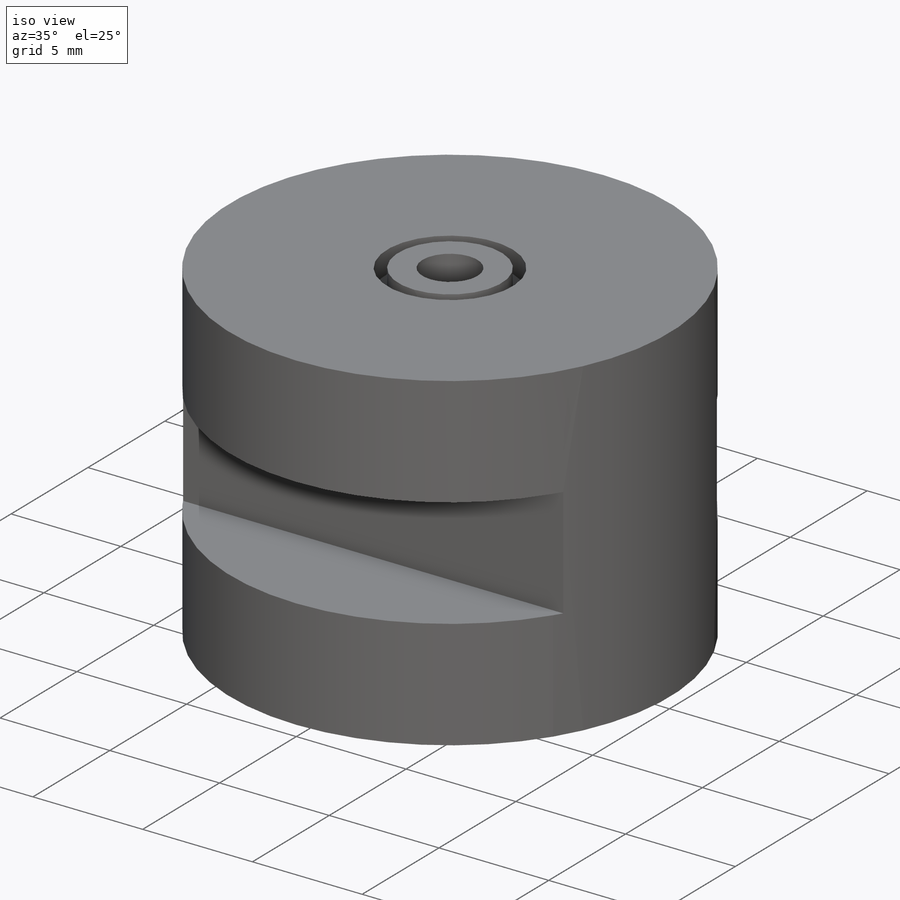
[diagram: iso view]
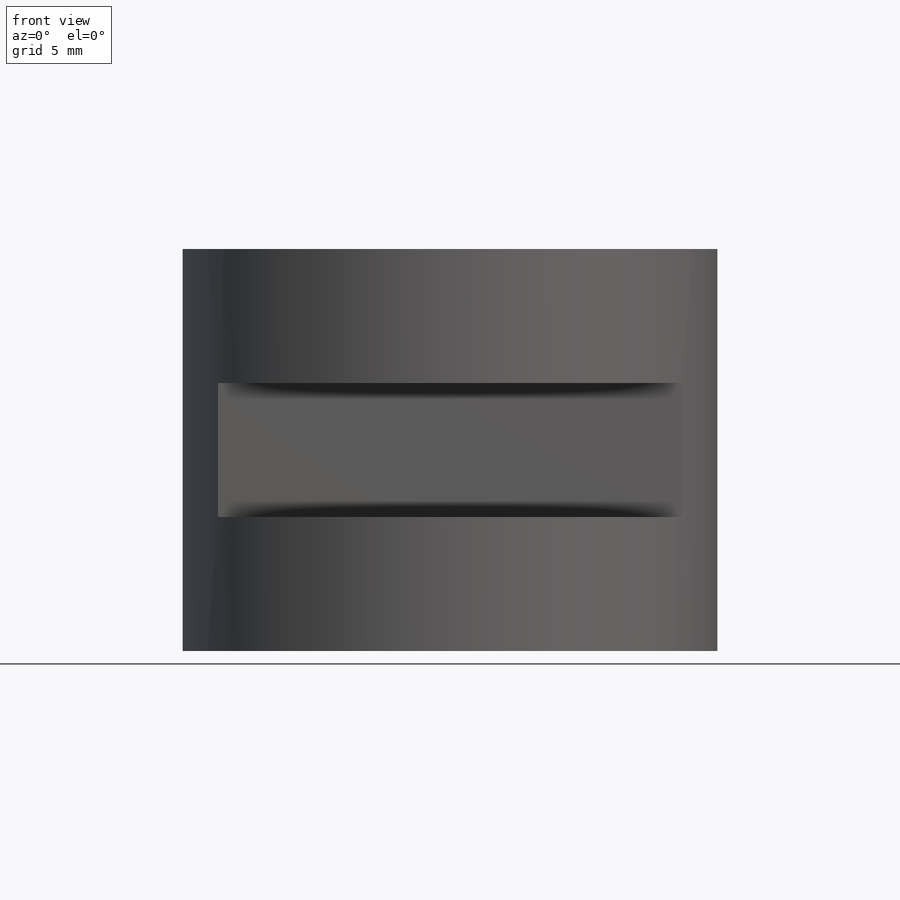
[diagram: front view]
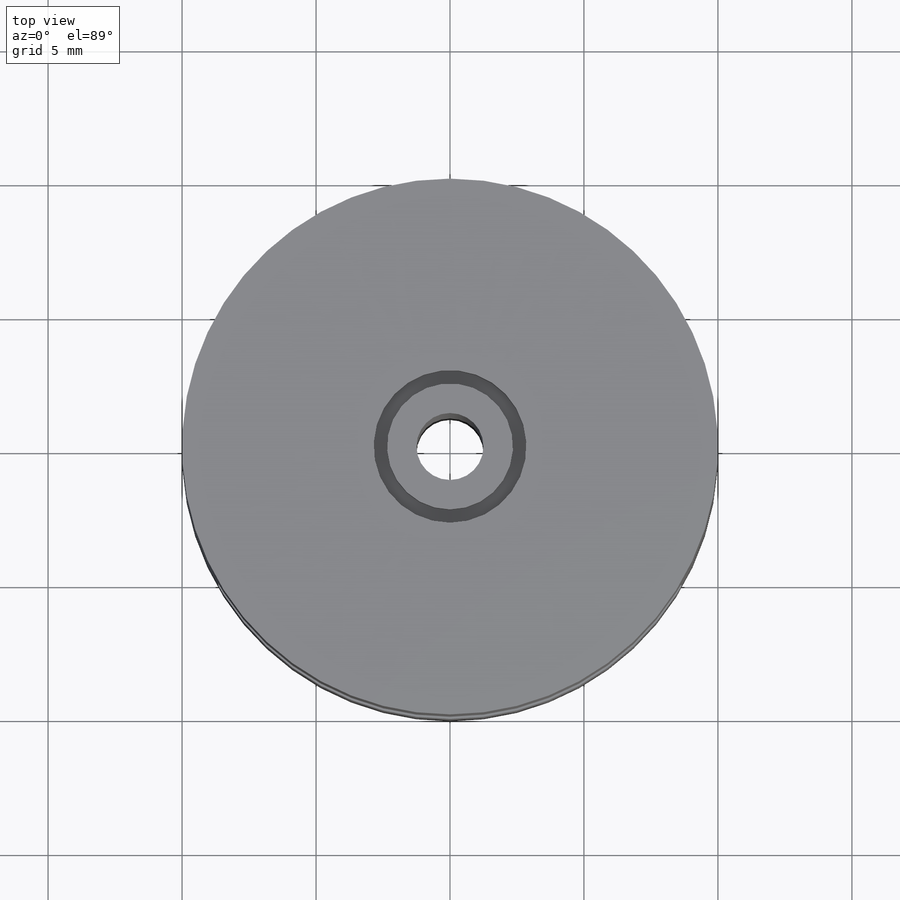
[diagram: top view]
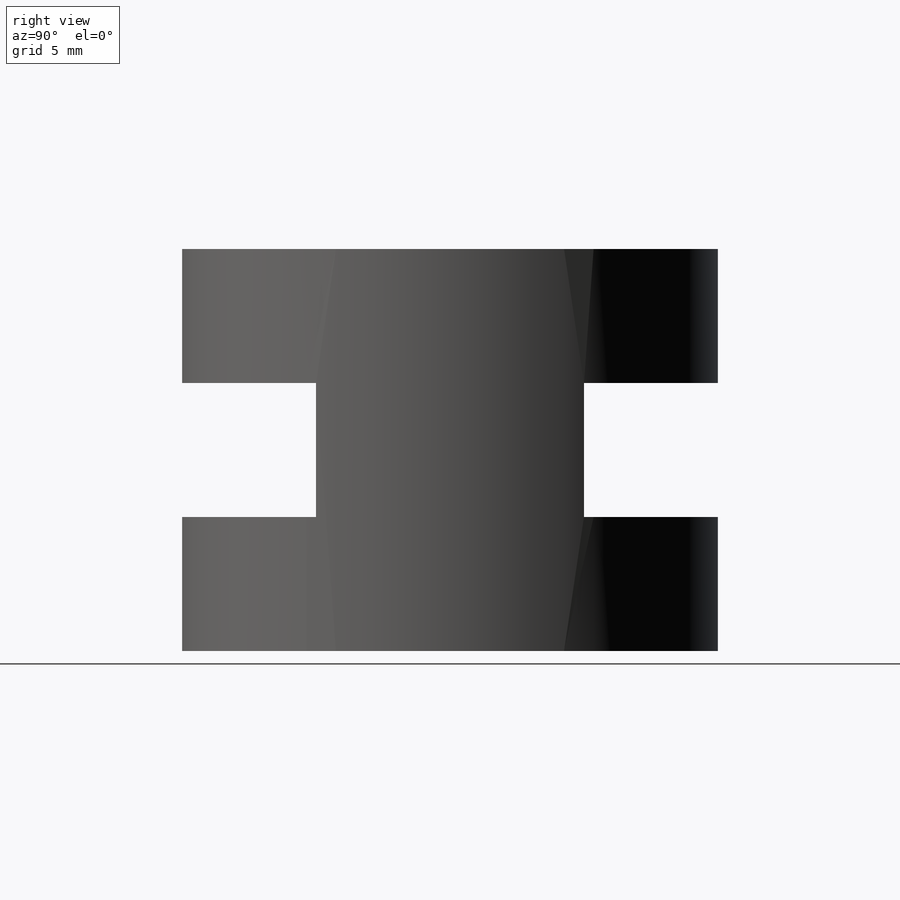
[diagram: right view]
SOLIDWORKS PART (.sldprt)
format: sldprt  version: not decoded by parser v0  size: 174,592 bytes
history: native  units: mm
features: sketch x4, plane x3, cut_extrude x3, material x1, extrude x1 (+10 scaffold rows collapsed)
feature tree (22):
  scaffold x10  (default folders/planes/origin — collapsed)
  material  "Matériau <non spécifié>"
  plane  "Plan de face"
  plane  "Plan de dessus"
  plane  "Plan de droite"
  sketch  "Esquisse1"  dims[D1=20.0mm D2=3.0mm D3=1.5mm D4=12.0mm D5=6.0mm]
  extrude  "Boss.-Extru.1"  Depth=15mm
  sketch  "Esquisse2"  dims[D1=5.7mm D2=0.5mm]
  cut_extrude  "Enlèv. mat.-Extru.1"  Depth=1mm
  sketch  "Esquisse3"  dims[D1=2.5mm]
  cut_extrude  "Enlèv. mat.-Extru.2"  [1 undecoded]
  sketch  "Esquisse4"  dims[c1.D2=2.0mm c1.D1=2.5mm c2.D2=3.5mm c2.D3=5.0mm c2.D4=5.0mm c2.D5=2.0mm c2.D6=2.0mm c2.D7=5.0mm c2.D8=5.0mm c2.D1=10.0mm c3.D2=5.0mm c3.D5=5.0mm c3.D6=10.0mm]
  cut_extrude  "Enlèv. mat.-Extru.3"  Depth=10mm
decode coverage: 7 of 8 modeling features carry decoded parameters
note: 1 parameter value undecoded
note: suppression state not decoded; provenance and decode notes live in map.json
